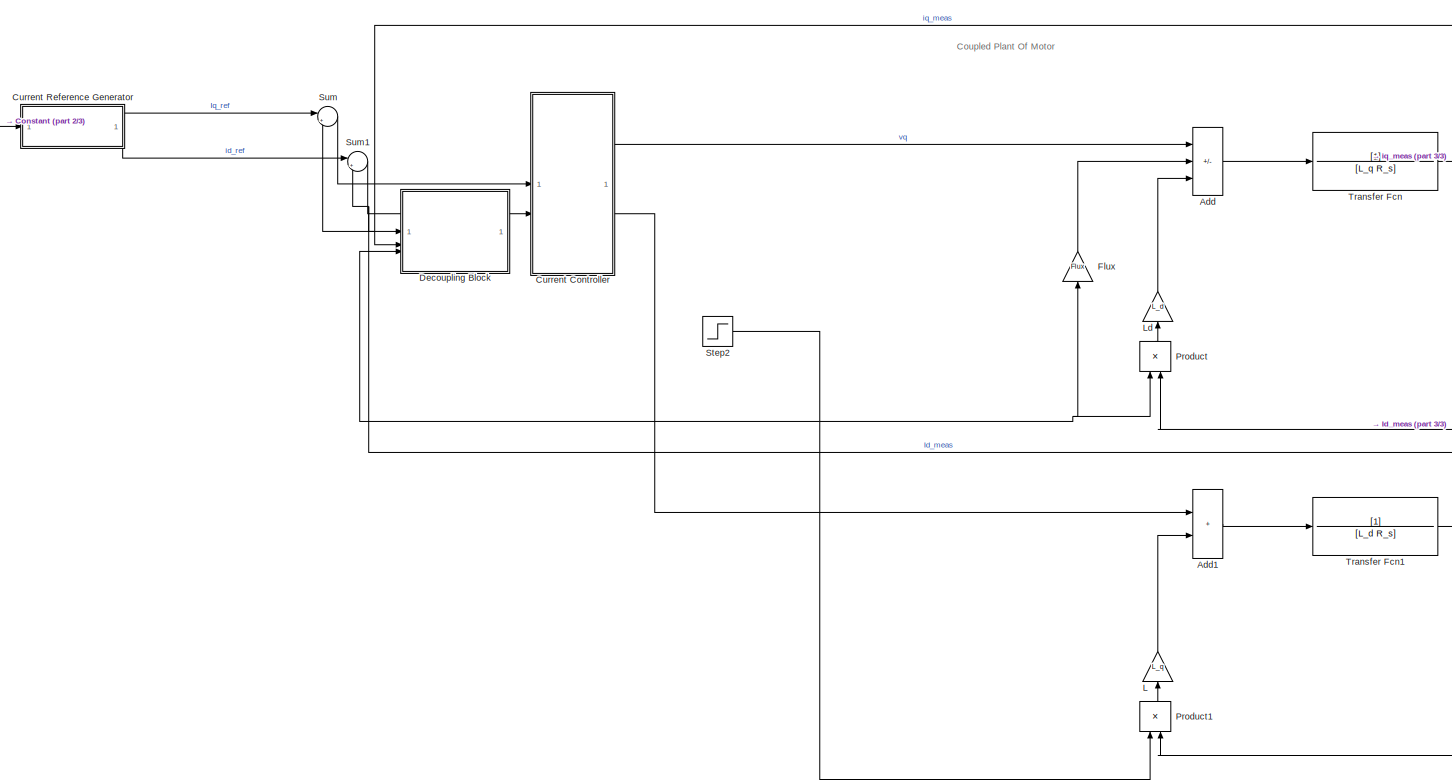
[diagram: root canvas - part 1/3, center side, full height]
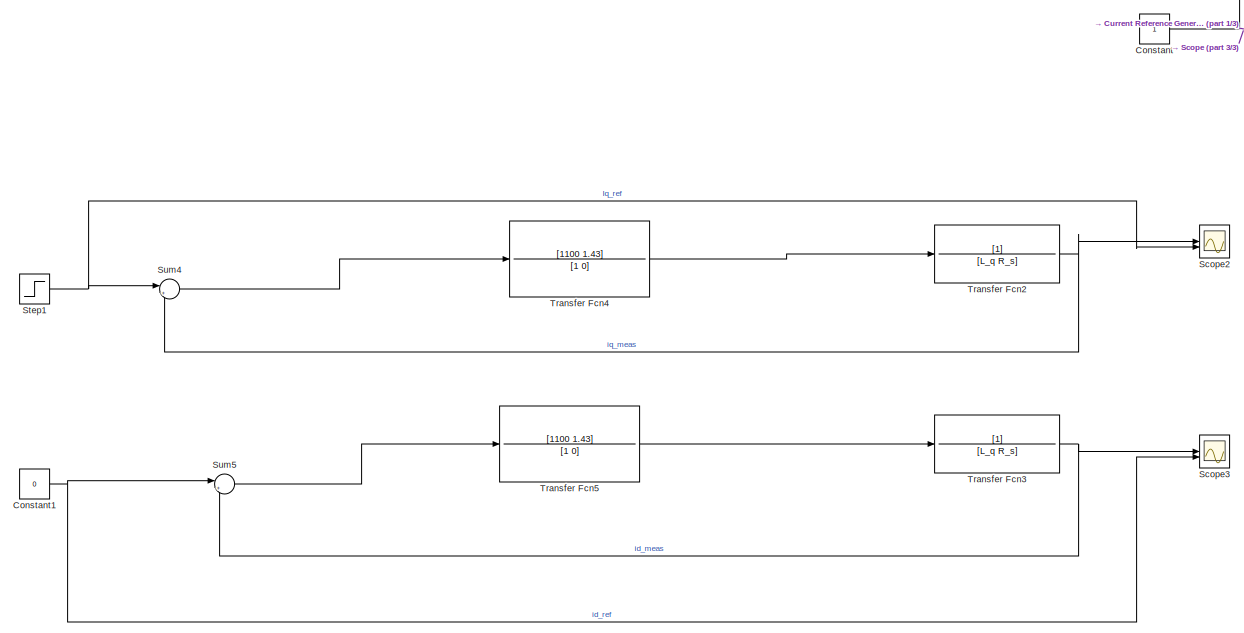
[diagram: root canvas - part 2/3, left side, full height]
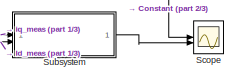
[diagram: root canvas - part 3/3, middle right region]
MODEL slx_1aa82d702923
KIND model
CONFIG AbsTol = auto
CONFIG EnableMultiTasking = off
CONFIG FixedStep = 0.002
CONFIG MaxStep = auto
CONFIG MinStep = auto
CONFIG RelTol = 1e-3
CONFIG SampleTimeConstraint = Unconstrained
CONFIG SolverName = VariableStepAuto
CONFIG StartTime = 0.0
CONFIG StopTime = 10
BLOCK [Sum] Add
  IconShape = rectangular
  Inputs = +--
BLOCK [Sum] Add1
  IconShape = rectangular
BLOCK [Constant] Constant
BLOCK [Constant] Constant1
  Value = 0
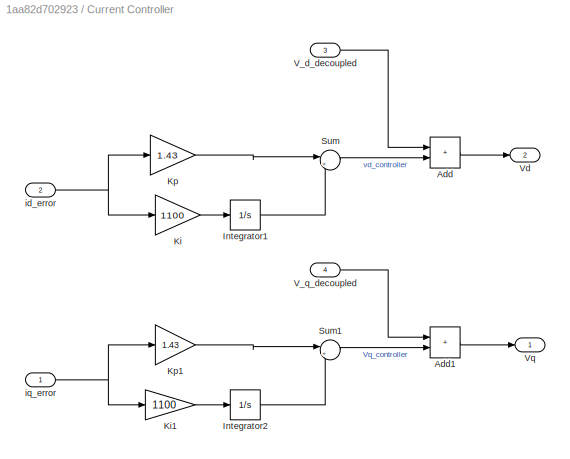
BLOCK [SubSystem] Current Controller
BLOCK [Sum] Current Controller/Add
  IconShape = rectangular
BLOCK [Sum] Current Controller/Add1
  IconShape = rectangular
BLOCK [Integrator] Current Controller/Integrator1
BLOCK [Integrator] Current Controller/Integrator2
BLOCK [Gain] Current Controller/Ki
  Gain = 1100
BLOCK [Gain] Current Controller/Ki1
  Gain = 1100
BLOCK [Gain] Current Controller/Kp
  Gain = 1.43
BLOCK [Gain] Current Controller/Kp1
  Gain = 1.43
BLOCK [Sum] Current Controller/Sum
  Inputs = |++
BLOCK [Sum] Current Controller/Sum1
  Inputs = |++
BLOCK [Inport] Current Controller/V_d_decoupled
  Port = 3
BLOCK [Inport] Current Controller/V_q_decoupled
  Port = 4
BLOCK [Outport] Current Controller/Vd
  Port = 2
BLOCK [Outport] Current Controller/Vq
BLOCK [Inport] Current Controller/id_error
  Port = 2
BLOCK [Inport] Current Controller/iq_error
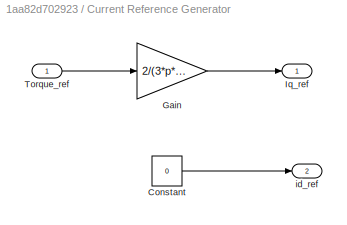
BLOCK [SubSystem] Current Reference Generator
BLOCK [Constant] Current Reference Generator/Constant
  Value = 0
BLOCK [Gain] Current Reference Generator/Gain
  Gain = 2/(3*p*flux)
BLOCK [Outport] Current Reference Generator/Iq_ref
BLOCK [Inport] Current Reference Generator/Torque_ref
BLOCK [Outport] Current Reference Generator/id_ref
  Port = 2
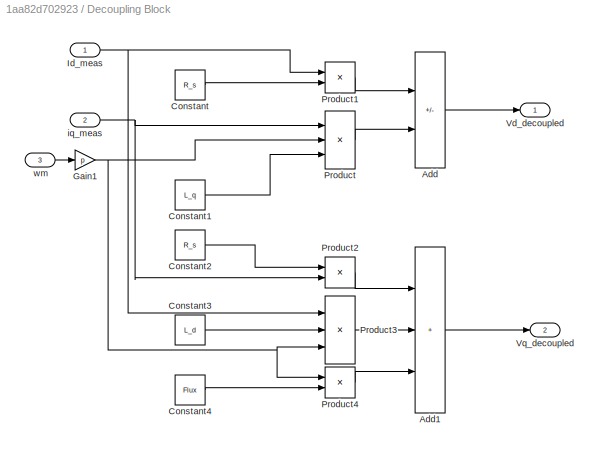
BLOCK [SubSystem] Decoupling Block
BLOCK [Sum] Decoupling Block/Add
  IconShape = rectangular
  Inputs = +-
BLOCK [Sum] Decoupling Block/Add1
  IconShape = rectangular
  Inputs = +++
BLOCK [Constant] Decoupling Block/Constant
  Value = R_s
BLOCK [Constant] Decoupling Block/Constant1
  Value = L_q
BLOCK [Constant] Decoupling Block/Constant2
  Value = R_s
BLOCK [Constant] Decoupling Block/Constant3
  Value = L_d
BLOCK [Constant] Decoupling Block/Constant4
  Value = Flux
BLOCK [Gain] Decoupling Block/Gain1
  Gain = p
BLOCK [Inport] Decoupling Block/Id_meas
BLOCK [Product] Decoupling Block/Product
  Inputs = 3
BLOCK [Product] Decoupling Block/Product1
BLOCK [Product] Decoupling Block/Product2
BLOCK [Product] Decoupling Block/Product3
  Inputs = 3
BLOCK [Product] Decoupling Block/Product4
BLOCK [Outport] Decoupling Block/Vd_decoupled
BLOCK [Outport] Decoupling Block/Vq_decoupled
  Port = 2
BLOCK [Inport] Decoupling Block/iq_meas
  Port = 2
BLOCK [Inport] Decoupling Block/wm
  Port = 3
BLOCK [Gain] Flux
  Gain = Flux
  NameLocation = right
BLOCK [Gain] L
  Gain = L_q
  NameLocation = right
BLOCK [Gain] Ld
  Gain = L_d
  NameLocation = right
BLOCK [Product] Product
  NameLocation = right
BLOCK [Product] Product1
  NameLocation = right
BLOCK [Scope] Scope
  Floating = off
  NumInputPorts = 2
  ScopeSpecificationString = Simulink.scopes.TimeScopeBlockCfg('CurrentConfiguration', extmgr.ConfigurationSet(extmgr.Configuration('Core','General UI',true),extmgr.Configuration('Core','Source UI',true),extmgr.Configuration('Sources','WiredSimulink',true,'DataLoggingVariableName','ScopeData1'),extmgr.Configuration('Visuals','Time Domain',true,'SerializedDisplays',{struct('MinYLimReal','-12.5','MaxYLimReal','12.5','YLabelReal...<+1535ch>
BLOCK [Scope] Scope2
  Floating = off
  NumInputPorts = 2
  ScopeSpecificationString = Simulink.scopes.TimeScopeBlockCfg('CurrentConfiguration', extmgr.ConfigurationSet(extmgr.Configuration('Core','General UI',true),extmgr.Configuration('Core','Source UI',true),extmgr.Configuration('Sources','WiredSimulink',true,'DataLoggingVariableName','ScopeData1'),extmgr.Configuration('Visuals','Time Domain',true,'SerializedDisplays',{struct('MinYLimReal','-1.25','MaxYLimReal','11.25','YLabelRea...<+1450ch>
BLOCK [Scope] Scope3
  Floating = off
  NumInputPorts = 2
  ScopeSpecificationString = Simulink.scopes.TimeScopeBlockCfg('CurrentConfiguration', extmgr.ConfigurationSet(extmgr.Configuration('Core','General UI',true),extmgr.Configuration('Core','Source UI',true),extmgr.Configuration('Sources','WiredSimulink',true,'DataLoggingVariableName','ScopeData2'),extmgr.Configuration('Visuals','Time Domain',true,'SerializedDisplays',{struct('MinYLimReal','-1.00000','MaxYLimReal','1.00000','YLab...<+1464ch>
BLOCK [Step] Step1
  After = 10
  SampleTime = 0
BLOCK [Step] Step2
  After = 100
  SampleTime = 0
  Time = 0.2
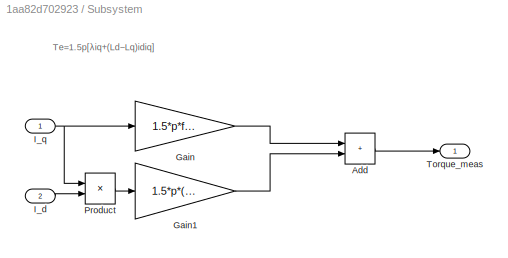
BLOCK [SubSystem] Subsystem
BLOCK [Sum] Subsystem/Add
  IconShape = rectangular
BLOCK [Gain] Subsystem/Gain
  Gain = 1.5*p*flux
BLOCK [Gain] Subsystem/Gain1
  Gain = 1.5*p*(L_d-L_q)
BLOCK [Inport] Subsystem/I_d
  Port = 2
BLOCK [Inport] Subsystem/I_q
BLOCK [Product] Subsystem/Product
BLOCK [Outport] Subsystem/Torque_meas
BLOCK [Sum] Sum
  Inputs = |+-
BLOCK [Sum] Sum1
  Inputs = |+-
BLOCK [Sum] Sum4
  Inputs = |+-
BLOCK [Sum] Sum5
  Inputs = |+-
BLOCK [TransferFcn] Transfer Fcn
  Denominator = [L_q R_s]
BLOCK [TransferFcn] Transfer Fcn1
  Denominator = [L_d R_s]
BLOCK [TransferFcn] Transfer Fcn2
  Denominator = [L_q R_s]
BLOCK [TransferFcn] Transfer Fcn3
  Denominator = [L_q R_s]
BLOCK [TransferFcn] Transfer Fcn4
  Denominator = [1 0]
  Numerator = [1100 1.43]
BLOCK [TransferFcn] Transfer Fcn5
  Denominator = [1 0]
  Numerator = [1100 1.43]
ANNOTATION (root): Coupled Plant Of Motor
ANNOTATION Subsystem: T e =1.5 p [ λi q +( L d − L q ) i d i q ]
LINE Add1:1 -> Transfer Fcn1:1
LINE Add:1 -> Transfer Fcn:1
NET Constant1:1 -> Scope3:2, Sum5:1
NET Constant:1 -> Current Reference Generator:1, Scope:1
LINE Current Controller/Add1:1 -> Current Controller/Vq:1
LINE Current Controller/Add:1 -> Current Controller/Vd:1
LINE Current Controller/Integrator1:1 -> Current Controller/Sum:2
LINE Current Controller/Integrator2:1 -> Current Controller/Sum1:2
LINE Current Controller/Ki1:1 -> Current Controller/Integrator2:1
LINE Current Controller/Ki:1 -> Current Controller/Integrator1:1
LINE Current Controller/Kp1:1 -> Current Controller/Sum1:1
LINE Current Controller/Kp:1 -> Current Controller/Sum:1
LINE Current Controller/Sum1:1 -> Current Controller/Add1:2
LINE Current Controller/Sum:1 -> Current Controller/Add:2
LINE Current Controller/V_d_decoupled:1 -> Current Controller/Add:1
LINE Current Controller/V_q_decoupled:1 -> Current Controller/Add1:1
NET Current Controller/id_error:1 -> Current Controller/Ki:1, Current Controller/Kp:1
NET Current Controller/iq_error:1 -> Current Controller/Ki1:1, Current Controller/Kp1:1
LINE Current Controller:1 -> Add:1
LINE Current Controller:2 -> Add1:1
LINE Current Reference Generator/Constant:1 -> Current Reference Generator/id_ref:1
LINE Current Reference Generator/Gain:1 -> Current Reference Generator/Iq_ref:1
LINE Current Reference Generator/Torque_ref:1 -> Current Reference Generator/Gain:1
LINE Current Reference Generator:1 -> Sum:1
LINE Current Reference Generator:2 -> Sum1:1
LINE Decoupling Block/Add1:1 -> Decoupling Block/Vq_decoupled:1
LINE Decoupling Block/Add:1 -> Decoupling Block/Vd_decoupled:1
LINE Decoupling Block/Constant1:1 -> Decoupling Block/Product:3
LINE Decoupling Block/Constant2:1 -> Decoupling Block/Product2:1
LINE Decoupling Block/Constant3:1 -> Decoupling Block/Product3:2
LINE Decoupling Block/Constant4:1 -> Decoupling Block/Product4:2
LINE Decoupling Block/Constant:1 -> Decoupling Block/Product1:2
NET Decoupling Block/Gain1:1 -> Decoupling Block/Product3:3, Decoupling Block/Product4:1, Decoupling Block/Product:2
NET Decoupling Block/Id_meas:1 -> Decoupling Block/Product1:1, Decoupling Block/Product3:1
LINE Decoupling Block/Product1:1 -> Decoupling Block/Add:1
LINE Decoupling Block/Product2:1 -> Decoupling Block/Add1:1
LINE Decoupling Block/Product3:1 -> Decoupling Block/Add1:2
LINE Decoupling Block/Product4:1 -> Decoupling Block/Add1:3
LINE Decoupling Block/Product:1 -> Decoupling Block/Add:2
NET Decoupling Block/iq_meas:1 -> Decoupling Block/Product2:2, Decoupling Block/Product:1
LINE Decoupling Block/wm:1 -> Decoupling Block/Gain1:1
LINE Flux:1 -> Add:2
LINE L:1 -> Add1:2
LINE Ld:1 -> Add:3
LINE Product1:1 -> L:1
LINE Product:1 -> Ld:1
NET Step1:1 -> Scope2:2, Sum4:1
NET Step2:1 -> Decoupling Block:3, Flux:1, Product1:1, Product:1
LINE Subsystem/Add:1 -> Subsystem/Torque_meas:1
LINE Subsystem/Gain1:1 -> Subsystem/Add:2
LINE Subsystem/Gain:1 -> Subsystem/Add:1
LINE Subsystem/I_d:1 -> Subsystem/Product:2
NET Subsystem/I_q:1 -> Subsystem/Gain:1, Subsystem/Product:1
LINE Subsystem/Product:1 -> Subsystem/Gain1:1
LINE Subsystem:1 -> Scope:2
LINE Sum1:1 -> Current Controller:2
LINE Sum4:1 -> Transfer Fcn4:1
LINE Sum5:1 -> Transfer Fcn5:1
LINE Sum:1 -> Current Controller:1
NET Transfer Fcn1:1 -> Decoupling Block:1, Product:2, Subsystem:2, Sum1:2
NET Transfer Fcn2:1 -> Scope2:1, Sum4:2
NET Transfer Fcn3:1 -> Scope3:1, Sum5:2
LINE Transfer Fcn4:1 -> Transfer Fcn2:1
LINE Transfer Fcn5:1 -> Transfer Fcn3:1
NET Transfer Fcn:1 -> Decoupling Block:2, Product1:2, Subsystem:1, Sum:2
note: NET lines group one-source signal fan-out (src -> all destinations, sorted); 1:1 wires keep LINE
